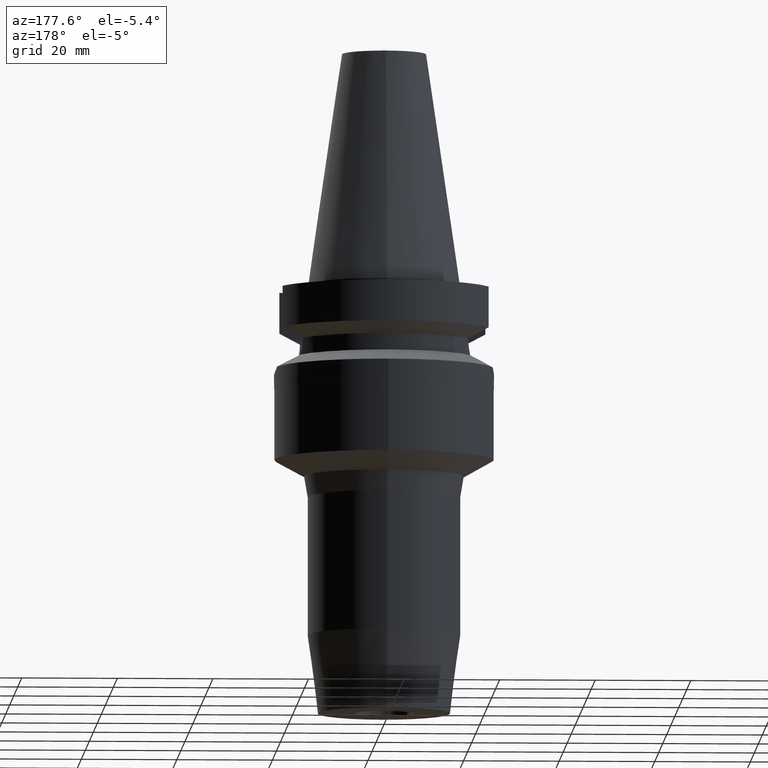
[diagram: clean part render]
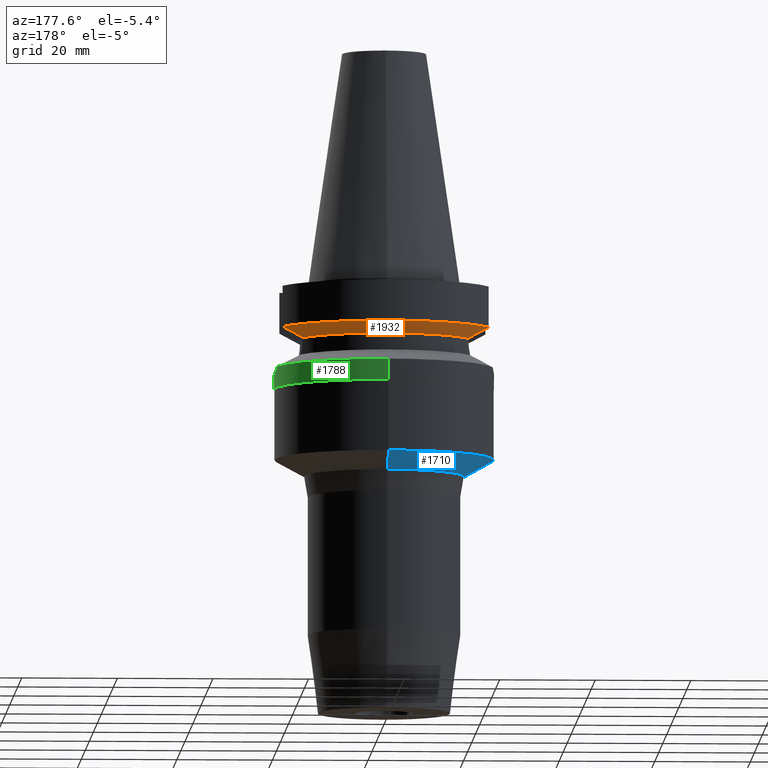
[diagram: same view with three faces highlighted in distinct colors, each labeled with its STEP entity id]
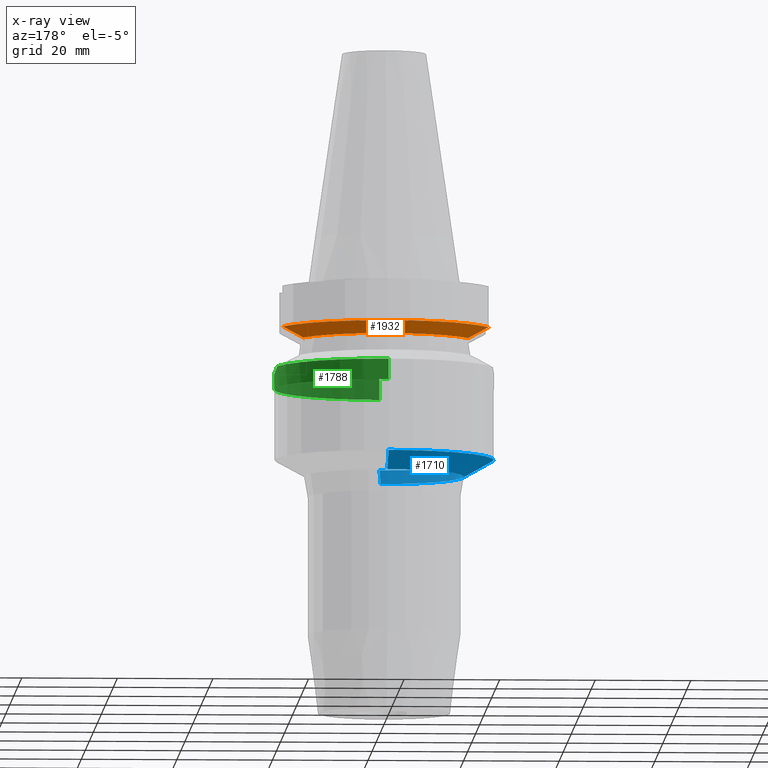
[diagram: x-ray of the same camera — body ghosted, the three highlighted faces saturated]
A machine part, auxiliary view with three faces highlighted in distinct colors.
The next image is the same camera in x-ray (body ghosted, the three faces saturated) — at least one of them is partly hidden behind the body in this view.
Their STEP definitions:

[orange] entity #1932 — the highlighted conical surface has half-angle 60 deg.
#734=CARTESIAN_POINT('',(-1.723531135311E1,7.996501749182E0,-1.187660739352E1));
#754=CARTESIAN_POINT('',(-1.896736186674E1,8.050001277723E0,-1.094999977543E1));
#755=CARTESIAN_POINT('',(-1.877435788378E1,8.050001277723E0,-1.105257472431E1));
#756=CARTESIAN_POINT('',(-1.838865476390E1,8.046082019873E0,-1.125795281937E1));
#757=CARTESIAN_POINT('',(-1.781119204542E1,8.028323726355E0,-1.156685916143E1));
#758=CARTESIAN_POINT('',(-1.742708427626E1,8.008477147819E0,-1.177326090513E1));
#759=CARTESIAN_POINT('',(-1.723531135311E1,7.996501749182E0,-1.187660739352E1));
#764=CARTESIAN_POINT('',(0.E0,1.093341284897E-14,-1.187660944647E1));
#765=DIRECTION('',(0.E0,0.E0,-1.E0));
#766=DIRECTION('',(-9.071218755694E-1,4.208680349747E-1,0.E0));
#767=AXIS2_PLACEMENT_3D('',#764,#765,#766);
#772=CARTESIAN_POINT('',(0.E0,1.093341284897E-14,-1.187660944647E1));
#773=DIRECTION('',(0.E0,0.E0,-1.E0));
#774=DIRECTION('',(0.E0,1.E0,0.E0));
#775=AXIS2_PLACEMENT_3D('',#772,#773,#774);
#780=CARTESIAN_POINT('',(1.723531622902E1,7.996491146276E0,-1.187660607782E1));
#781=CARTESIAN_POINT('',(1.742711751403E1,8.008468271790E0,-1.177324424046E1));
#782=CARTESIAN_POINT('',(1.781125610070E1,8.028331856440E0,-1.156681091111E1));
#783=CARTESIAN_POINT('',(1.838870194717E1,8.046085191966E0,-1.125790844374E1));
#784=CARTESIAN_POINT('',(1.877442071819E1,8.049994318183E0,-1.105255736998E1));
#785=CARTESIAN_POINT('',(1.896738966530E1,8.049994318183E0,-1.095000099923E1));
#790=CARTESIAN_POINT('',(0.E0,1.093341284897E-14,-9.567208369711E0));
#791=DIRECTION('',(0.E0,0.E0,1.E0));
#792=DIRECTION('',(9.367496997597E-1,3.500000000001E-1,0.E0));
#793=AXIS2_PLACEMENT_3D('',#790,#791,#792);
#798=CARTESIAN_POINT('',(0.E0,1.093341284897E-14,-9.567208369711E0));
#799=DIRECTION('',(0.E0,0.E0,1.E0));
#800=DIRECTION('',(0.E0,1.E0,0.E0));
#801=AXIS2_PLACEMENT_3D('',#798,#799,#800);
#806=CARTESIAN_POINT('',(-1.896736186674E1,8.050001277723E0,-1.094999977543E1));
#807=CARTESIAN_POINT('',(-1.925439178295E1,8.050001277723E0,-1.079745329150E1));
#808=CARTESIAN_POINT('',(-1.982795252640E1,8.049999683001E0,-1.049150139874E1));
#809=CARTESIAN_POINT('',(-2.068728862326E1,8.049999192912E0,-1.003062464925E1));
#810=CARTESIAN_POINT('',(-2.125933007641E1,8.050002094538E0,-9.721825273656E0));
#811=CARTESIAN_POINT('',(-2.154524231189E1,8.050002094538E0,-9.567194606710E0));
#830=CARTESIAN_POINT('',(2.154524325238E1,8.049999577379E0,-9.567211146543E0));
#831=CARTESIAN_POINT('',(2.125934146994E1,8.049999577379E0,-9.721836180394E0));
#832=CARTESIAN_POINT('',(2.068725319578E1,8.049999439648E0,-1.003056889150E1));
#833=CARTESIAN_POINT('',(1.982793088328E1,8.050002595165E0,-1.049144078753E1));
#834=CARTESIAN_POINT('',(1.925438162563E1,8.049994318183E0,-1.079747462476E1));
#835=CARTESIAN_POINT('',(1.896738966530E1,8.049994318183E0,-1.095000099923E1));
#1214=CARTESIAN_POINT('',(1.896738966530E1,8.049994318183E0,-1.095000099923E1));
#1215=VERTEX_POINT('',#1214);
#1216=VERTEX_POINT('',#780);
#1226=VERTEX_POINT('',#734);
#1227=VERTEX_POINT('',#754);
#1239=CARTESIAN_POINT('',(0.E0,1.9E1,-1.187660944647E1));
#1240=VERTEX_POINT('',#1239);
#1246=VERTEX_POINT('',#811);
#1247=VERTEX_POINT('',#830);
#1248=CARTESIAN_POINT('',(-1.303073946459E-14,2.3E1,-9.567208369711E0));
#1249=VERTEX_POINT('',#1248);
#1913=CARTESIAN_POINT('',(0.E0,1.093341284897E-14,-1.072190890809E1));
#1914=DIRECTION('',(0.E0,0.E0,1.E0));
#1915=DIRECTION('',(0.E0,1.E0,0.E0));
#1916=AXIS2_PLACEMENT_3D('',#1913,#1914,#1915);
#1917=CONICAL_SURFACE('',#1916,2.1E1,6.E1);
#1919=ORIENTED_EDGE('',*,*,#1918,.F.);
#1920=ORIENTED_EDGE('',*,*,#1849,.T.);
#1921=ORIENTED_EDGE('',*,*,#1908,.T.);
#1922=ORIENTED_EDGE('',*,*,#1906,.T.);
#1923=ORIENTED_EDGE('',*,*,#1810,.T.);
#1925=ORIENTED_EDGE('',*,*,#1924,.F.);
#1927=ORIENTED_EDGE('',*,*,#1926,.T.);
#1929=ORIENTED_EDGE('',*,*,#1928,.T.);
#1930=EDGE_LOOP('',(#1919,#1920,#1921,#1922,#1923,#1925,#1927,#1929));
#1931=FACE_OUTER_BOUND('',#1930,.F.);
#760=B_SPLINE_CURVE_WITH_KNOTS('',3,(#754,#755,#756,#757,#758,#759),
.UNSPECIFIED.,.F.,.F.,(4,1,1,4),(0.E0,3.333333333333E-1,6.666666666667E-1,1.E0),
.UNSPECIFIED.);
#768=CIRCLE('',#767,1.9E1);
#776=CIRCLE('',#775,1.9E1);
#786=B_SPLINE_CURVE_WITH_KNOTS('',3,(#780,#781,#782,#783,#784,#785),
.UNSPECIFIED.,.F.,.F.,(4,1,1,4),(0.E0,3.333333333333E-1,6.666666666667E-1,1.E0),
.UNSPECIFIED.);
#794=CIRCLE('',#793,2.3E1);
#802=CIRCLE('',#801,2.3E1);
#812=B_SPLINE_CURVE_WITH_KNOTS('',3,(#806,#807,#808,#809,#810,#811),
.UNSPECIFIED.,.F.,.F.,(4,1,1,4),(0.E0,3.333333333333E-1,6.666666666667E-1,1.E0),
.UNSPECIFIED.);
#836=B_SPLINE_CURVE_WITH_KNOTS('',3,(#830,#831,#832,#833,#834,#835),
.UNSPECIFIED.,.F.,.F.,(4,1,1,4),(0.E0,3.333333333333E-1,6.666666666667E-1,1.E0),
.UNSPECIFIED.);
#1810=EDGE_CURVE('',#1216,#1215,#786,.T.);
#1849=EDGE_CURVE('',#1227,#1226,#760,.T.);
#1906=EDGE_CURVE('',#1240,#1216,#776,.T.);
#1908=EDGE_CURVE('',#1226,#1240,#768,.T.);
#1918=EDGE_CURVE('',#1227,#1246,#812,.T.);
#1924=EDGE_CURVE('',#1247,#1215,#836,.T.);
#1926=EDGE_CURVE('',#1247,#1249,#794,.T.);
#1928=EDGE_CURVE('',#1249,#1246,#802,.T.);
#1932=ADVANCED_FACE('',(#1931),#1917,.T.);

[blue] entity #1710 — the highlighted conical surface has half-angle 60.907 deg.
#468=CARTESIAN_POINT('',(0.E0,0.E0,-3.68E1));
#469=DIRECTION('',(0.E0,0.E0,1.E0));
#470=DIRECTION('',(0.E0,1.E0,0.E0));
#471=AXIS2_PLACEMENT_3D('',#468,#469,#470);
#476=DIRECTION('',(0.E0,8.738316335897E-1,-4.862286253790E-1));
#477=VECTOR('',#476,7.113415851165E0);
#478=CARTESIAN_POINT('',(0.E0,-2.295E1,-3.68E1));
#479=LINE('',#478,#477);
#483=CARTESIAN_POINT('',(0.E0,0.E0,-4.025874641106E1));
#484=DIRECTION('',(0.E0,0.E0,-1.E0));
#485=DIRECTION('',(0.E0,-1.E0,0.E0));
#486=AXIS2_PLACEMENT_3D('',#483,#484,#485);
#491=DIRECTION('',(0.E0,-8.738316335897E-1,-4.862286253790E-1));
#492=VECTOR('',#491,7.113415851165E0);
#493=CARTESIAN_POINT('',(0.E0,2.295E1,-3.68E1));
#494=LINE('',#493,#492);
#1182=CARTESIAN_POINT('',(0.E0,1.673407220637E1,-4.025874641106E1));
#1183=VERTEX_POINT('',#1182);
#1184=CARTESIAN_POINT('',(0.E0,-1.673407220637E1,-4.025874641106E1));
#1185=VERTEX_POINT('',#1184);
#1186=CARTESIAN_POINT('',(0.E0,2.295E1,-3.68E1));
#1187=VERTEX_POINT('',#1186);
#1188=CARTESIAN_POINT('',(0.E0,-2.295E1,-3.68E1));
#1189=VERTEX_POINT('',#1188);
#1696=CARTESIAN_POINT('',(0.E0,0.E0,-3.852937320553E1));
#1697=DIRECTION('',(0.E0,0.E0,1.E0));
#1698=DIRECTION('',(0.E0,1.E0,0.E0));
#1699=AXIS2_PLACEMENT_3D('',#1696,#1697,#1698);
#1700=CONICAL_SURFACE('',#1699,1.984203610319E1,6.0907E1);
#1702=ORIENTED_EDGE('',*,*,#1701,.F.);
#1704=ORIENTED_EDGE('',*,*,#1703,.T.);
#1706=ORIENTED_EDGE('',*,*,#1705,.T.);
#1707=ORIENTED_EDGE('',*,*,#1689,.T.);
#1708=EDGE_LOOP('',(#1702,#1704,#1706,#1707));
#1709=FACE_OUTER_BOUND('',#1708,.F.);
#472=CIRCLE('',#471,2.295E1);
#487=CIRCLE('',#486,1.673407220637E1);
#1689=EDGE_CURVE('',#1185,#1183,#487,.T.);
#1701=EDGE_CURVE('',#1187,#1183,#494,.T.);
#1703=EDGE_CURVE('',#1187,#1189,#472,.T.);
#1705=EDGE_CURVE('',#1189,#1185,#479,.T.);
#1710=ADVANCED_FACE('',(#1709),#1700,.T.);

[green] entity #1788 — the highlighted cylindrical surface (partial cylindrical patch) has radius 23 mm, axis along (0, 0, -1).
#520=CARTESIAN_POINT('',(0.E0,1.902121408436E-14,-2.2E1));
#521=DIRECTION('',(0.E0,0.E0,1.E0));
#522=DIRECTION('',(0.E0,-1.E0,0.E0));
#523=AXIS2_PLACEMENT_3D('',#520,#521,#522);
#552=CARTESIAN_POINT('',(2.255786346208E1,-4.488072640470E0,-1.763279163029E1));
#553=CARTESIAN_POINT('',(2.264814992618E1,-4.034276569681E0,-1.793755494513E1));
#554=CARTESIAN_POINT('',(2.280758013879E1,-3.091528849703E0,-1.843944818404E1));
#555=CARTESIAN_POINT('',(2.296427506530E1,-1.563892683769E0,-1.889882814013E1));
#556=CARTESIAN_POINT('',(2.3E1,-5.266131269406E-1,-1.9E1));
#557=CARTESIAN_POINT('',(2.3E1,0.E0,-1.9E1));
#562=CARTESIAN_POINT('',(2.3E1,0.E0,-1.9E1));
#563=CARTESIAN_POINT('',(2.3E1,5.266070651558E-1,-1.9E1));
#564=CARTESIAN_POINT('',(2.296427587828E1,1.563878656086E0,-1.889883209543E1));
#565=CARTESIAN_POINT('',(2.280758220138E1,3.091514805306E0,-1.843945252399E1));
#566=CARTESIAN_POINT('',(2.264815092887E1,4.034271529983E0,-1.793755832973E1));
#567=CARTESIAN_POINT('',(2.255786346208E1,4.488072640470E0,-1.763279163029E1));
#572=DIRECTION('',(0.E0,-2.603192430893E-14,-1.E0));
#573=VECTOR('',#572,4.367208369710E0);
#574=CARTESIAN_POINT('',(0.E0,2.3E1,-1.763279163029E1));
#575=LINE('',#574,#573);
#630=CARTESIAN_POINT('',(0.E0,1.022848384030E-14,-1.763279163029E1));
#631=DIRECTION('',(0.E0,0.E0,-1.E0));
#632=DIRECTION('',(9.807766722644E-1,-1.951335930639E-1,0.E0));
#633=AXIS2_PLACEMENT_3D('',#630,#631,#632);
#673=DIRECTION('',(0.E0,2.277793377031E-14,-1.E0));
#674=VECTOR('',#673,4.367208369710E0);
#675=CARTESIAN_POINT('',(0.E0,-2.3E1,-1.763279163029E1));
#676=LINE('',#675,#674);
#699=CARTESIAN_POINT('',(0.E0,1.022848384030E-14,-1.763279163029E1));
#700=DIRECTION('',(0.E0,0.E0,-1.E0));
#701=DIRECTION('',(0.E0,1.E0,0.E0));
#702=AXIS2_PLACEMENT_3D('',#699,#700,#701);
#1194=CARTESIAN_POINT('',(0.E0,-2.3E1,-2.2E1));
#1195=CARTESIAN_POINT('',(0.E0,2.3E1,-2.2E1));
#1196=VERTEX_POINT('',#1194);
#1197=VERTEX_POINT('',#1195);
#1198=VERTEX_POINT('',#562);
#1199=VERTEX_POINT('',#567);
#1200=VERTEX_POINT('',#552);
#1201=CARTESIAN_POINT('',(0.E0,2.3E1,-1.763279163029E1));
#1202=VERTEX_POINT('',#1201);
#1203=CARTESIAN_POINT('',(0.E0,-2.3E1,-1.763279163029E1));
#1204=VERTEX_POINT('',#1203);
#1768=CARTESIAN_POINT('',(0.E0,1.902121408436E-14,5.532E1));
#1769=DIRECTION('',(0.E0,0.E0,-1.E0));
#1770=DIRECTION('',(0.E0,-1.E0,0.E0));
#1771=AXIS2_PLACEMENT_3D('',#1768,#1769,#1770);
#1772=CYLINDRICAL_SURFACE('',#1771,2.3E1);
#1774=ORIENTED_EDGE('',*,*,#1773,.T.);
#1776=ORIENTED_EDGE('',*,*,#1775,.T.);
#1778=ORIENTED_EDGE('',*,*,#1777,.F.);
#1780=ORIENTED_EDGE('',*,*,#1779,.T.);
#1781=ORIENTED_EDGE('',*,*,#1757,.F.);
#1783=ORIENTED_EDGE('',*,*,#1782,.F.);
#1785=ORIENTED_EDGE('',*,*,#1784,.F.);
#1786=EDGE_LOOP('',(#1774,#1776,#1778,#1780,#1781,#1783,#1785));
#1787=FACE_OUTER_BOUND('',#1786,.F.);
#524=CIRCLE('',#523,2.3E1);
#558=B_SPLINE_CURVE_WITH_KNOTS('',3,(#552,#553,#554,#555,#556,#557),
.UNSPECIFIED.,.F.,.F.,(4,1,1,4),(0.E0,3.333333333333E-1,6.666666666667E-1,1.E0),
.UNSPECIFIED.);
#568=B_SPLINE_CURVE_WITH_KNOTS('',3,(#562,#563,#564,#565,#566,#567),
.UNSPECIFIED.,.F.,.F.,(4,1,1,4),(0.E0,3.333333333333E-1,6.666666666667E-1,1.E0),
.UNSPECIFIED.);
#634=CIRCLE('',#633,2.3E1);
#703=CIRCLE('',#702,2.3E1);
#1757=EDGE_CURVE('',#1196,#1197,#524,.T.);
#1773=EDGE_CURVE('',#1200,#1198,#558,.T.);
#1775=EDGE_CURVE('',#1198,#1199,#568,.T.);
#1777=EDGE_CURVE('',#1202,#1199,#703,.T.);
#1779=EDGE_CURVE('',#1202,#1197,#575,.T.);
#1782=EDGE_CURVE('',#1204,#1196,#676,.T.);
#1784=EDGE_CURVE('',#1200,#1204,#634,.T.);
#1788=ADVANCED_FACE('',(#1787),#1772,.T.);